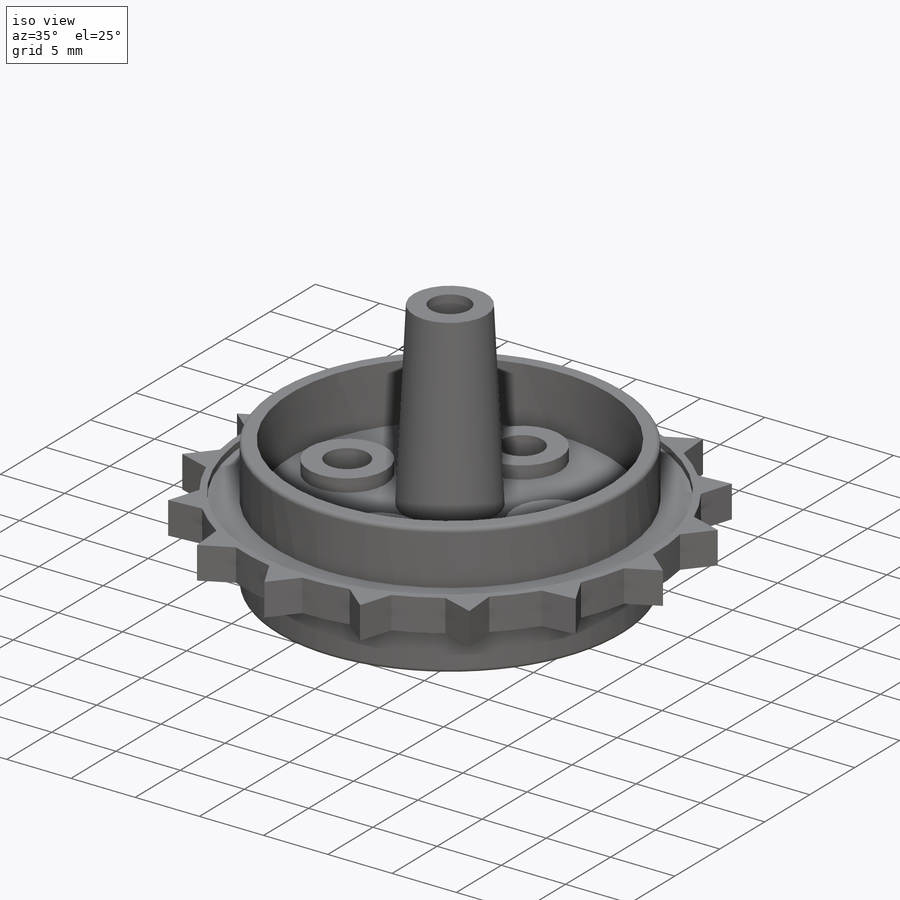
[diagram: iso view]
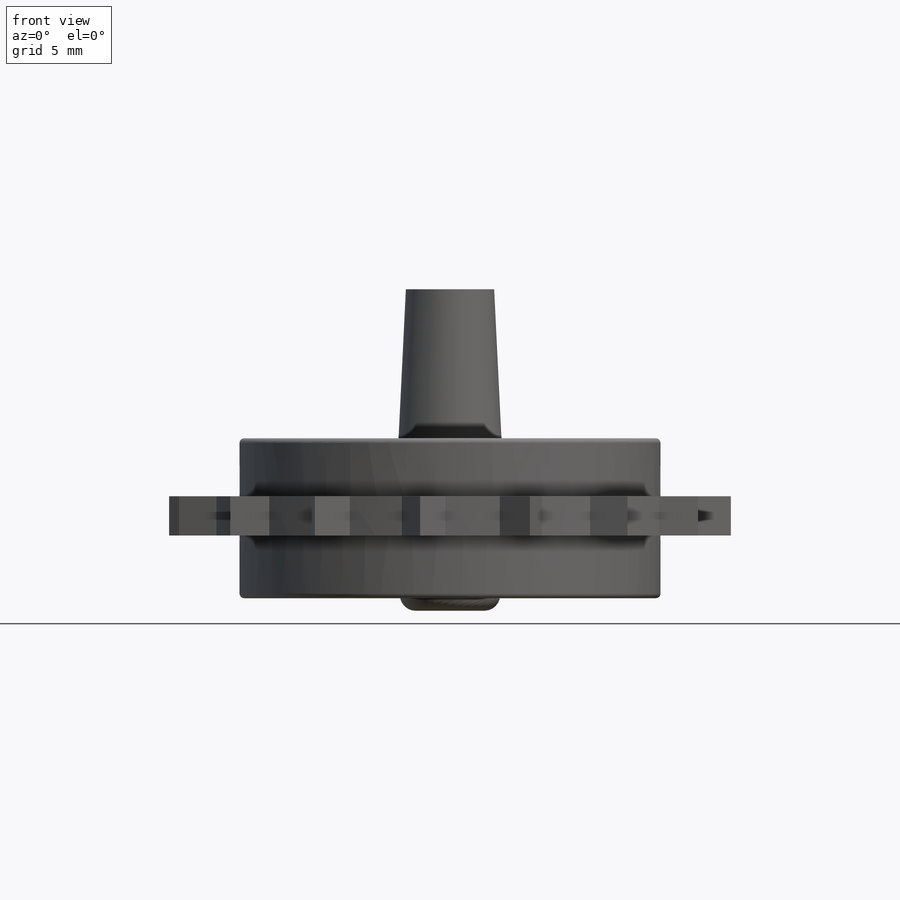
[diagram: front view]
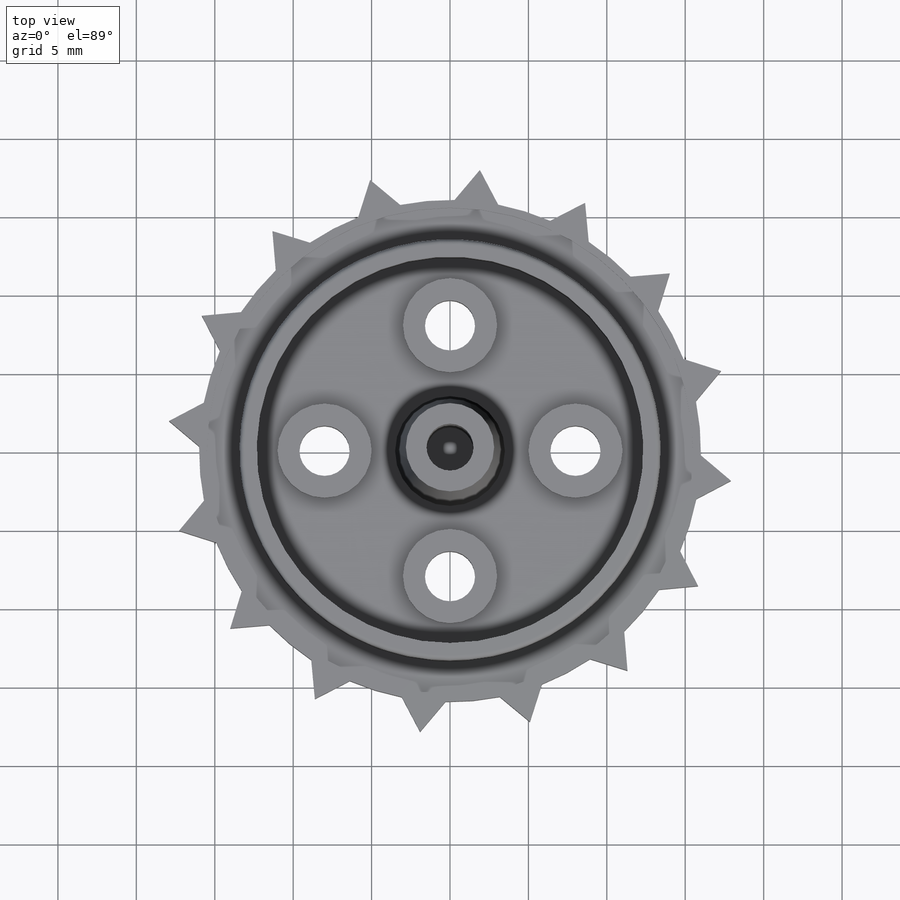
[diagram: top view]
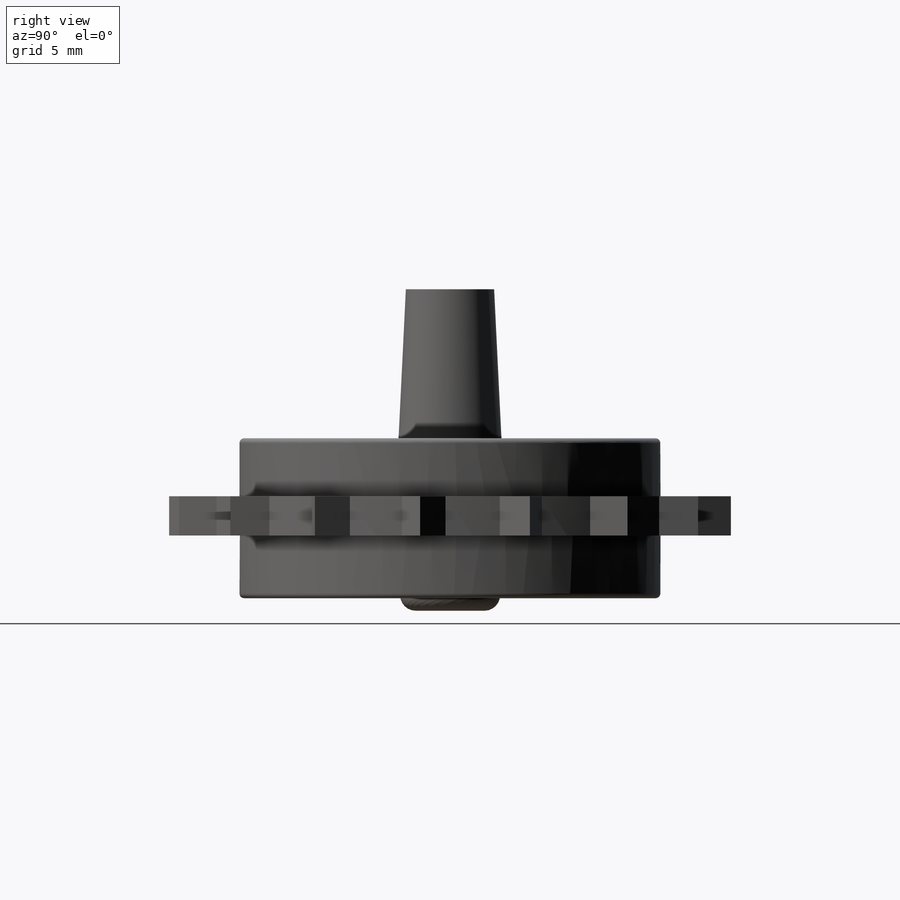
[diagram: right view]
SOLIDWORKS PART (.sldprt)
format: sldprt  version: not decoded by parser v0  size: 410,624 bytes
history: native  units: mm
features: sketch x14, extrude x8, cut_extrude x6, fillet x3, material x1 (+11 scaffold rows collapsed)
feature tree (43):
  scaffold x11  (default folders/planes/origin — collapsed)
  material  "Material <not specified>"
  sketch  "Sketch1"  dims[D1=26.85mm]
  extrude  "Boss-Extrude1"  Depth=4mm
  sketch  "Sketch2"  dims[D1=32.0mm]
  extrude  "Boss-Extrude2"  Depth=2.5mm
  sketch  "Sketch4"  dims[D1=1.1mm]
  cut_extrude  "Cut-Extrude1"  Depth=4mm
  sketch  "Sketch5"  dims[D1=0.5mm]
  sketch  "Sketch6"  dims[D1=0.5mm]
  cut_extrude  "Cut-Extrude3"  Depth=0.5mm
  cut_extrude  "Cut-Extrude4"  Depth=0.5mm
  sketch  "Sketch7"  dims[D1=11.0mm D2=6.0mm D3=8.0mm D4=0.0mm D6=~11.313708mm D7=~11.313708mm D5=4.0]
  extrude  "Boss-Extrude4"  Depth=1mm
  sketch  "Sketch8"  dims[D1=6.4mm]
  extrude  "Boss-Extrude5"  Depth=4.3mm
  fillet  "Fillet1"  Radius=1mm
  sketch  "Sketch10"  dims[D1=26.85mm]
  extrude  "Boss-Extrude6"  Depth=4.2mm
  sketch  "Sketch11"  dims[D1=1.1mm]
  cut_extrude  "Cut-Extrude6"  Depth=4.5mm
  sketch  "Sketch12"  dims[D1=7.0mm]
  extrude  "Boss-Extrude7"  Depth=14mm
  sketch  "Sketch13"  dims[D1=3.0mm]
  cut_extrude  "Cut-Extrude7"  Depth=14mm
  fillet  "Fillet2"  Radius=0.3mm
  fillet  "Fillet3"  Radius=0.3mm
  sketch  "Sketch14"  dims[D1=3.2mm D2=0.0mm D3=4.0]
  cut_extrude  "Cut-Extrude8"  Depth=5mm
  sketch  "Sketch15"  dims[D1=6.0mm D2=4.0 D3=4.0]
  extrude  "Boss-Extrude8"  Depth=1mm
  sketch  "Sketch16"  dims[c1.D1=2.8mm c1.D2=2.0mm c1.D3=2.5mm c2.D2=2.5mm c2.D1=2.8mm c3.D2=~2.443641mm c4.D2=~26.765501deg c5.D2=2.5mm c5.D4=16.0]
  extrude  "Boss-Extrude9"  [1 undecoded]
decode coverage: 30 of 31 modeling features carry decoded parameters
note: ~ marks probable driven/reference dimensions
note: 1 parameter value undecoded
note: suppression state not decoded; provenance and decode notes live in map.json
